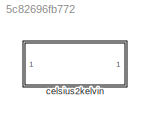
MODEL slx_5c82696fb772
KIND library
CONFIG AbsTol = auto
CONFIG EnableMultiTasking = off
CONFIG FixedStep = auto
CONFIG MaxStep = auto
CONFIG MinStep = auto
CONFIG RelTol = 1e-3
CONFIG SampleTimeConstraint = Unconstrained
CONFIG Solver = ode45
CONFIG SolverName = ode45
CONFIG StartTime = 0.0
CONFIG StopTime = 10.0
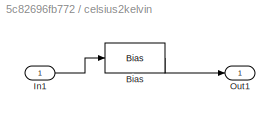
BLOCK [SubSystem] celsius2kelvin
  Ports = [1, 1]
  RequestExecContextInheritance = off
BLOCK [Bias] celsius2kelvin/Bias
  Bias = 273
  SaturateOnIntegerOverflow = off
BLOCK [Inport] celsius2kelvin/In1
  IconDisplay = Port number
BLOCK [Outport] celsius2kelvin/Out1
  IconDisplay = Port number
LINE celsius2kelvin/Bias:1 -> celsius2kelvin/Out1:1
LINE celsius2kelvin/In1:1 -> celsius2kelvin/Bias:1
